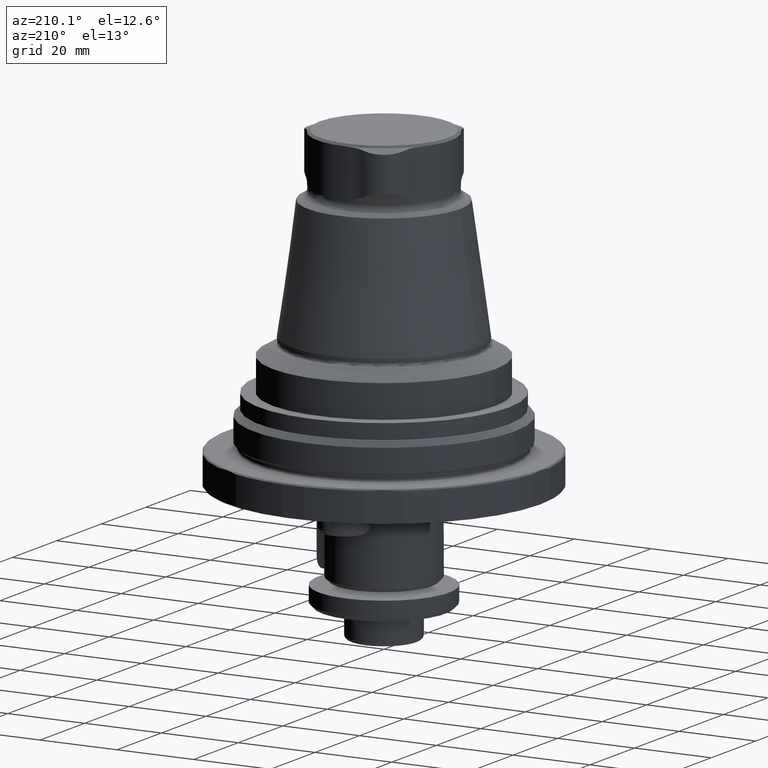
[diagram: clean part render]
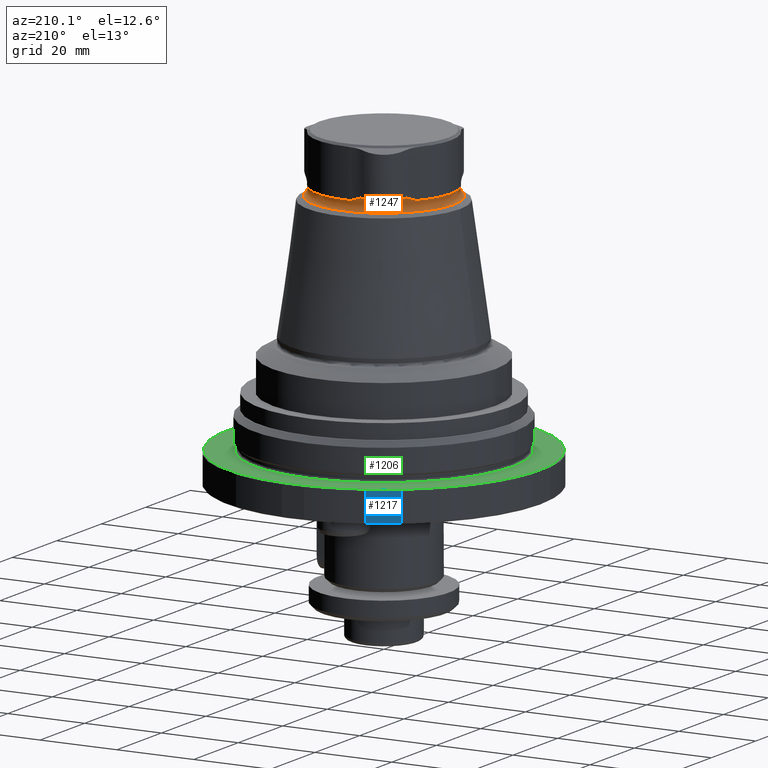
[diagram: same view with three faces highlighted in distinct colors, each labeled with its STEP entity id]
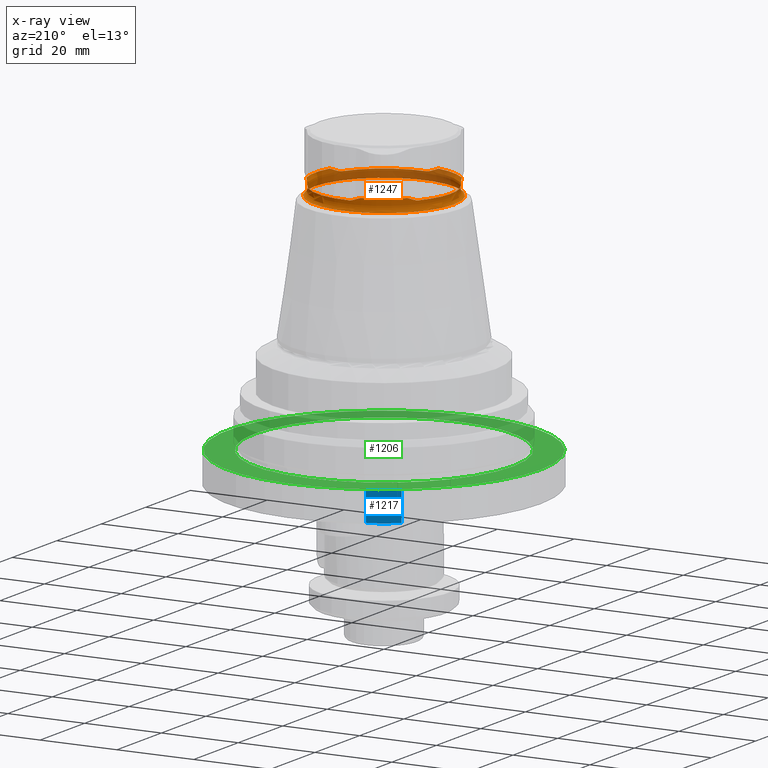
[diagram: x-ray of the same camera — body ghosted, the three highlighted faces saturated]
A machine part, auxiliary view with three faces highlighted in distinct colors.
The next image is the same camera in x-ray (body ghosted, the three faces saturated) — at least one of them is partly hidden behind the body in this view.
Their STEP definitions:

[orange] entity #1247 — the highlighted toroidal blend (fillet) surface has major radius 19.28 mm and minor (blend) radius 2 mm.
#57=B_SPLINE_CURVE_WITH_KNOTS('',3,(#2217,#2218,#2219,#2220,#2221),
 .UNSPECIFIED.,.F.,.F.,(4,1,4),(6.35686144102185E-7,0.0015978311918001,
0.00319502669745609),.UNSPECIFIED.);
#59=B_SPLINE_CURVE_WITH_KNOTS('',3,(#2232,#2233,#2234,#2235,#2236),
 .UNSPECIFIED.,.F.,.F.,(4,1,4),(1.97137655947927E-7,0.00159333802635267,
0.00318647891504939),.UNSPECIFIED.);
#61=B_SPLINE_CURVE_WITH_KNOTS('',3,(#2247,#2248,#2249,#2250,#2251),
 .UNSPECIFIED.,.F.,.F.,(4,1,4),(6.35686110278571E-7,0.00159783085864816,
0.00319502603118605),.UNSPECIFIED.);
#63=B_SPLINE_CURVE_WITH_KNOTS('',3,(#2262,#2263,#2264,#2265,#2266),
 .UNSPECIFIED.,.F.,.F.,(4,1,4),(2.20521440774518E-7,0.00159336113449157,
0.00318650174754236),.UNSPECIFIED.);
#65=B_SPLINE_CURVE_WITH_KNOTS('',3,(#2277,#2278,#2279,#2280,#2281),
 .UNSPECIFIED.,.F.,.F.,(4,1,4),(6.35686056500829E-7,0.00159783032874763,
0.00319502497143876),.UNSPECIFIED.);
#67=B_SPLINE_CURVE_WITH_KNOTS('',3,(#2292,#2293,#2294,#2295,#2296),
 .UNSPECIFIED.,.F.,.F.,(4,1,4),(2.35223058471433E-7,0.00159337566279852,
0.00318651610253857),.UNSPECIFIED.);
#530=ORIENTED_EDGE('',*,*,#714,.F.);
#531=ORIENTED_EDGE('',*,*,#713,.T.);
#532=ORIENTED_EDGE('',*,*,#712,.T.);
#533=ORIENTED_EDGE('',*,*,#709,.T.);
#534=ORIENTED_EDGE('',*,*,#708,.T.);
#535=ORIENTED_EDGE('',*,*,#706,.T.);
#536=ORIENTED_EDGE('',*,*,#704,.T.);
#537=ORIENTED_EDGE('',*,*,#701,.T.);
#538=ORIENTED_EDGE('',*,*,#700,.T.);
#539=ORIENTED_EDGE('',*,*,#698,.T.);
#540=ORIENTED_EDGE('',*,*,#696,.T.);
#541=ORIENTED_EDGE('',*,*,#693,.T.);
#542=ORIENTED_EDGE('',*,*,#692,.T.);
#692=EDGE_CURVE('',#822,#823,#57,.T.);
#693=EDGE_CURVE('',#824,#822,#899,.T.);
#696=EDGE_CURVE('',#825,#824,#59,.T.);
#698=EDGE_CURVE('',#826,#825,#900,.T.);
#700=EDGE_CURVE('',#827,#826,#61,.T.);
#701=EDGE_CURVE('',#828,#827,#901,.T.);
#704=EDGE_CURVE('',#829,#828,#63,.T.);
#706=EDGE_CURVE('',#830,#829,#902,.T.);
#708=EDGE_CURVE('',#831,#830,#65,.T.);
#709=EDGE_CURVE('',#832,#831,#903,.T.);
#712=EDGE_CURVE('',#833,#832,#67,.T.);
#713=EDGE_CURVE('',#823,#833,#904,.T.);
#714=EDGE_CURVE('',#834,#834,#905,.T.);
#822=VERTEX_POINT('',#2214);
#823=VERTEX_POINT('',#2216);
#824=VERTEX_POINT('',#2224);
#825=VERTEX_POINT('',#2231);
#826=VERTEX_POINT('',#2239);
#827=VERTEX_POINT('',#2246);
#828=VERTEX_POINT('',#2254);
#829=VERTEX_POINT('',#2261);
#830=VERTEX_POINT('',#2269);
#831=VERTEX_POINT('',#2276);
#832=VERTEX_POINT('',#2284);
#833=VERTEX_POINT('',#2291);
#834=VERTEX_POINT('',#2301);
#899=CIRCLE('',#1392,17.9944247806269);
#900=CIRCLE('',#1395,17.38);
#901=CIRCLE('',#1398,17.9944247806269);
#902=CIRCLE('',#1401,17.38);
#903=CIRCLE('',#1404,17.9944247806269);
#904=CIRCLE('',#1407,17.38);
#905=CIRCLE('',#1409,18.28);
#1020=EDGE_LOOP('',(#530));
#1021=EDGE_LOOP('',(#531,#532,#533,#534,#535,#536,#537,#538,#539,#540,#541,
#542));
#1145=FACE_BOUND('',#1020,.T.);
#1146=FACE_BOUND('',#1021,.T.);
#1169=TOROIDAL_SURFACE('',#1408,19.28,2.);
#1247=ADVANCED_FACE('',(#1145,#1146),#1169,.F.);
#1392=AXIS2_PLACEMENT_3D('',#2223,#1712,#1713);
#1395=AXIS2_PLACEMENT_3D('',#2240,#1720,#1721);
#1398=AXIS2_PLACEMENT_3D('',#2253,#1726,#1727);
#1401=AXIS2_PLACEMENT_3D('',#2270,#1734,#1735);
#1404=AXIS2_PLACEMENT_3D('',#2283,#1740,#1741);
#1407=AXIS2_PLACEMENT_3D('',#2298,#1747,#1748);
#1408=AXIS2_PLACEMENT_3D('',#2299,#1749,#1750);
#1409=AXIS2_PLACEMENT_3D('',#2300,#1751,#1752);
#1712=DIRECTION('',(1.22461692971323E-16,-7.49836836562635E-33,-1.));
#1713=DIRECTION('',(-1.,6.12303176911189E-17,-1.22461692971323E-16));
#1720=DIRECTION('',(1.22461692971323E-16,-7.49836836562635E-33,-1.));
#1721=DIRECTION('',(-1.,6.12303176911189E-17,-1.22461692971323E-16));
#1726=DIRECTION('',(1.22461692971323E-16,-7.49836836562635E-33,-1.));
#1727=DIRECTION('',(-1.,6.12303176911189E-17,-1.22461692971323E-16));
#1734=DIRECTION('',(1.22461692971323E-16,-7.49836836562635E-33,-1.));
#1735=DIRECTION('',(-1.,6.12303176911189E-17,-1.22461692971323E-16));
#1740=DIRECTION('',(1.22461692971323E-16,-7.49836836562635E-33,-1.));
#1741=DIRECTION('',(-1.,6.12303176911189E-17,-1.22461692971323E-16));
#1747=DIRECTION('',(1.22461692971323E-16,-7.49836836562635E-33,-1.));
#1748=DIRECTION('',(-1.,6.12303176911189E-17,-1.22461692971323E-16));
#1749=DIRECTION('',(1.22461692971323E-16,-7.49836836562635E-33,-1.));
#1750=DIRECTION('',(-1.,6.12303176911189E-17,-1.22461692971323E-16));
#1751=DIRECTION('',(1.22461692971323E-16,-7.49836836562635E-33,-1.));
#1752=DIRECTION('',(-1.,6.12303176911189E-17,-1.22461692971323E-16));
#2214=CARTESIAN_POINT('',(-13.1844579384725,-12.2461990860139,61.0160728241915));
#2216=CARTESIAN_POINT('',(-14.5433864753958,-9.51600282825072,60.1084837377935));
#2217=CARTESIAN_POINT('',(-13.1844579384718,-12.2461990860133,61.0160728241922));
#2218=CARTESIAN_POINT('',(-13.3557624744756,-11.7684289393792,60.8485594541288));
#2219=CARTESIAN_POINT('',(-13.7430631802596,-10.8589171321316,60.465939393488));
#2220=CARTESIAN_POINT('',(-14.2485410599591,-9.96661753534753,60.1084837377905));
#2221=CARTESIAN_POINT('',(-14.5433864753951,-9.51600282825074,60.1084837377904));
#2223=CARTESIAN_POINT('',(1.46769010863797E-15,-8.98671316240156E-32,61.0160728241915));
#2224=CARTESIAN_POINT('',(-4.0132905390536,-17.5411750528516,61.0160728241915));
#2231=CARTESIAN_POINT('',(-0.969406954051809,-17.3529435588731,60.1084837377934));
#2232=CARTESIAN_POINT('',(-0.969406954051811,-17.3529435588731,60.1084837377934));
#2233=CARTESIAN_POINT('',(-1.50816065140855,-17.3228465566575,60.1084837377934));
#2234=CARTESIAN_POINT('',(-2.5276528809224,-17.331086405168,60.4643411911177));
#2235=CARTESIAN_POINT('',(-3.51330235117727,-17.4505398563382,60.8483666425664));
#2236=CARTESIAN_POINT('',(-4.0132905390535,-17.541175052851,61.016072824192));
#2239=CARTESIAN_POINT('',(15.5127934294476,-7.83694073062241,60.1084837377934));
#2240=CARTESIAN_POINT('',(-7.64773027486394E-17,4.68272954345907E-33,60.1084837377934));
#2246=CARTESIAN_POINT('',(17.1977484775261,-5.29497596683764,61.0160728241915));
#2247=CARTESIAN_POINT('',(17.1977484775253,-5.29497596683733,61.0160728241922));
#2248=CARTESIAN_POINT('',(16.8696397123536,-5.6822150599481,60.8485594801569));
#2249=CARTESIAN_POINT('',(16.2756298563554,-6.47238305001316,60.4659395692859));
#2250=CARTESIAN_POINT('',(15.7556146861175,-7.35628939938424,60.1084837377908));
#2251=CARTESIAN_POINT('',(15.5127934294473,-7.83694073062188,60.1084837377907));
#2253=CARTESIAN_POINT('',(1.46769010863797E-15,-8.98671316240156E-32,61.0160728241915));
#2254=CARTESIAN_POINT('',(17.1977484775261,5.29497596683763,61.0160728241915));
#2261=CARTESIAN_POINT('',(15.5127934294476,7.8369407306223,60.1084837377934));
#2262=CARTESIAN_POINT('',(15.5127934294476,7.8369407306223,60.1084837377934));
#2263=CARTESIAN_POINT('',(15.7561051581389,7.35531853697712,60.1084837377934));
#2264=CARTESIAN_POINT('',(16.2729875744631,6.47653147093608,60.464341093761));
#2265=CARTESIAN_POINT('',(16.8692619580383,5.68266089149592,60.8483666206682));
#2266=CARTESIAN_POINT('',(17.1977484775256,5.29497596683744,61.016072824192));
#2269=CARTESIAN_POINT('',(-0.969406954051804,17.3529435588731,60.1084837377934));
#2270=CARTESIAN_POINT('',(-7.64773027486394E-17,4.68272954345907E-33,60.1084837377934));
#2276=CARTESIAN_POINT('',(-4.01329053905358,17.5411750528516,61.0160728241915));
#2277=CARTESIAN_POINT('',(-4.01329053905341,17.5411750528507,61.0160728241922));
#2278=CARTESIAN_POINT('',(-3.51387738791885,17.4506440959366,60.8485595215557));
#2279=CARTESIAN_POINT('',(-2.53256722910757,17.3313005024,60.4659398488993));
#2280=CARTESIAN_POINT('',(-1.50707448211518,17.3229072345509,60.1084837377914));
#2281=CARTESIAN_POINT('',(-0.969406954052059,17.3529435588727,60.1084837377913));
#2283=CARTESIAN_POINT('',(1.46769010863797E-15,-8.98671316240156E-32,61.0160728241915));
#2284=CARTESIAN_POINT('',(-13.1844579384725,12.2461990860139,61.0160728241915));
#2291=CARTESIAN_POINT('',(-14.5433864753958,9.51600282825071,60.1084837377934));
#2292=CARTESIAN_POINT('',(-14.5433864753958,9.51600282825071,60.1084837377934));
#2293=CARTESIAN_POINT('',(-14.2479455533474,9.96752765306905,60.1084837377934));
#2294=CARTESIAN_POINT('',(-13.7453345115463,10.8545549561262,60.4643410325569));
#2295=CARTESIAN_POINT('',(-13.3559596862253,11.7678789137431,60.8483666069014));
#2296=CARTESIAN_POINT('',(-13.1844579384721,12.2461990860136,61.016072824192));
#2298=CARTESIAN_POINT('',(-7.64773027486394E-17,4.68272954345907E-33,60.1084837377934));
#2299=CARTESIAN_POINT('',(0.,0.,59.4839839379536));
#2300=CARTESIAN_POINT('',(1.86742218163645E-15,-1.14342853445042E-31,57.7519331303847));
#2301=CARTESIAN_POINT('',(-18.28,1.11929020739365E-15,57.7519331303847));

[blue] entity #1217 — the highlighted planar face has unit normal (0.5, -0.866, -0).
#33=B_SPLINE_CURVE_WITH_KNOTS('',3,(#1987,#1988,#1989,#1990),
 .UNSPECIFIED.,.F.,.F.,(4,4),(0.00557144708641946,0.0136408878602545),
 .UNSPECIFIED.);
#40=B_SPLINE_CURVE_WITH_KNOTS('',3,(#2058,#2059,#2060,#2061),
 .UNSPECIFIED.,.F.,.F.,(4,4),(0.0141550941599224,0.0221911710009365),
 .UNSPECIFIED.);
#93=LINE('',#2056,#137);
#94=LINE('',#2063,#138);
#137=VECTOR('',#1636,1000.);
#138=VECTOR('',#1639,1000.);
#227=PLANE('',#1361);
#395=ORIENTED_EDGE('',*,*,#650,.F.);
#396=ORIENTED_EDGE('',*,*,#651,.F.);
#397=ORIENTED_EDGE('',*,*,#652,.F.);
#398=ORIENTED_EDGE('',*,*,#626,.F.);
#626=EDGE_CURVE('',#777,#778,#33,.T.);
#650=EDGE_CURVE('',#792,#777,#93,.F.);
#651=EDGE_CURVE('',#793,#792,#40,.T.);
#652=EDGE_CURVE('',#778,#793,#94,.T.);
#777=VERTEX_POINT('',#1986);
#778=VERTEX_POINT('',#1991);
#792=VERTEX_POINT('',#2055);
#793=VERTEX_POINT('',#2062);
#983=EDGE_LOOP('',(#395,#396,#397,#398));
#1108=FACE_BOUND('',#983,.T.);
#1217=ADVANCED_FACE('',(#1108),#227,.F.);
#1361=AXIS2_PLACEMENT_3D('',#2057,#1637,#1638);
#1636=DIRECTION('',(2.37516272644386E-69,1.04225259501902E-17,-1.));
#1637=DIRECTION('',(0.5,-0.866025403784439,-9.0261722444673E-18));
#1638=DIRECTION('',(2.37516272644386E-69,1.04225259501902E-17,-1.));
#1639=DIRECTION('',(2.37516272644386E-69,1.04225259501902E-17,-1.));
#1986=CARTESIAN_POINT('',(-16.8971440223726,37.3562113160208,-1.29999999999999));
#1987=CARTESIAN_POINT('',(-16.8971440223726,37.3562113160208,-1.29999999999999));
#1988=CARTESIAN_POINT('',(-19.2155409083335,36.0176842498229,-1.03590210112193));
#1989=CARTESIAN_POINT('',(-21.5731526377083,34.6565164832237,-1.03461413755012));
#1990=CARTESIAN_POINT('',(-23.9028559776274,33.3114616327894,-1.3));
#1991=CARTESIAN_POINT('',(-23.9028559776274,33.3114616327895,-1.29999999999999));
#2055=CARTESIAN_POINT('',(-16.8971440223727,37.3562113160207,-8.7));
#2056=CARTESIAN_POINT('',(-16.8971440223726,37.3562113160208,-1.));
#2057=CARTESIAN_POINT('',(-20.4,35.3338364744051,-4.99999999999999));
#2058=CARTESIAN_POINT('',(-23.9028559776273,33.3114616327895,-8.7));
#2059=CARTESIAN_POINT('',(-21.5731526377083,34.6565164832237,-8.96538586244987));
#2060=CARTESIAN_POINT('',(-19.2155409083335,36.0176842498229,-8.96409789887805));
#2061=CARTESIAN_POINT('',(-16.8971440223727,37.3562113160207,-8.7));
#2062=CARTESIAN_POINT('',(-23.9028559776273,33.3114616327895,-8.70000000000002));
#2063=CARTESIAN_POINT('',(-23.9028559776274,33.3114616327895,-1.));

[green] entity #1206 — the highlighted planar face has unit normal (0, 0, -1).
#222=PLANE('',#1336);
#340=ORIENTED_EDGE('',*,*,#614,.T.);
#341=ORIENTED_EDGE('',*,*,#615,.F.);
#614=EDGE_CURVE('',#765,#765,#873,.T.);
#615=EDGE_CURVE('',#766,#766,#874,.T.);
#765=VERTEX_POINT('',#1946);
#766=VERTEX_POINT('',#1949);
#873=CIRCLE('',#1335,33.65);
#874=CIRCLE('',#1337,40.7);
#970=EDGE_LOOP('',(#340));
#971=EDGE_LOOP('',(#341));
#1095=FACE_BOUND('',#970,.T.);
#1096=FACE_BOUND('',#971,.T.);
#1206=ADVANCED_FACE('',(#1095,#1096),#222,.F.);
#1335=AXIS2_PLACEMENT_3D('',#1945,#1575,#1576);
#1336=AXIS2_PLACEMENT_3D('',#1947,#1577,#1578);
#1337=AXIS2_PLACEMENT_3D('',#1948,#1579,#1580);
#1575=DIRECTION('',(2.37516272644386E-69,1.04225259501902E-17,-1.));
#1576=DIRECTION('',(-1.,0.,0.));
#1577=DIRECTION('',(2.37516272644386E-69,1.04225259501902E-17,-1.));
#1578=DIRECTION('',(-1.,0.,0.));
#1579=DIRECTION('',(2.37516272644386E-69,1.04225259501902E-17,-1.));
#1580=DIRECTION('',(-1.,0.,0.));
#1945=CARTESIAN_POINT('',(7.88665112559661E-15,1.00056249121826E-16,-1.));
#1946=CARTESIAN_POINT('',(-33.65,1.00056249121826E-16,-1.));
#1947=CARTESIAN_POINT('',(-33.65,1.00056249121826E-16,-1.));
#1948=CARTESIAN_POINT('',(7.88665112559661E-15,1.00056249121826E-16,-1.));
#1949=CARTESIAN_POINT('',(-40.7,1.00056249121826E-16,-1.));